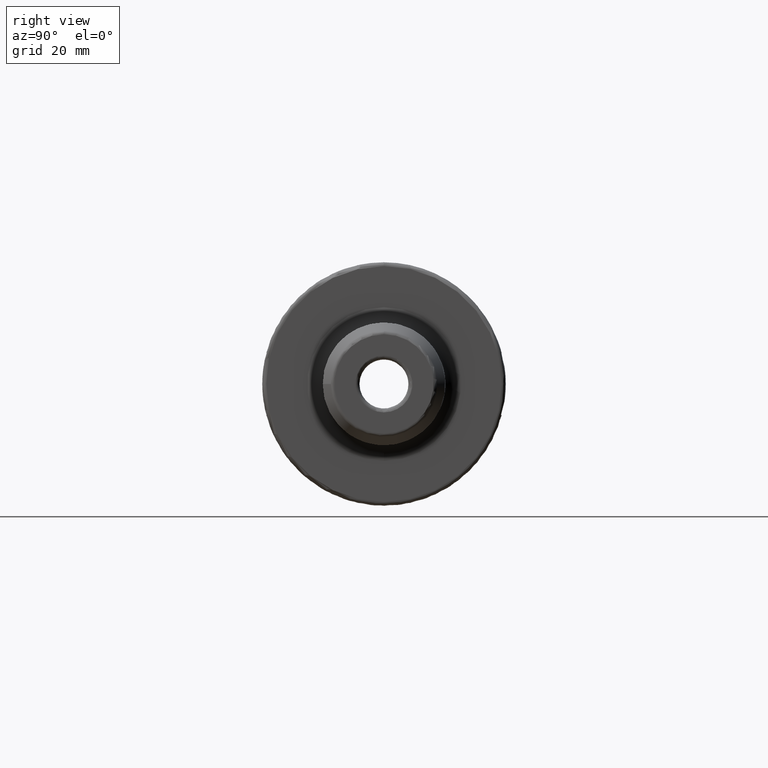
[diagram: clean part render]
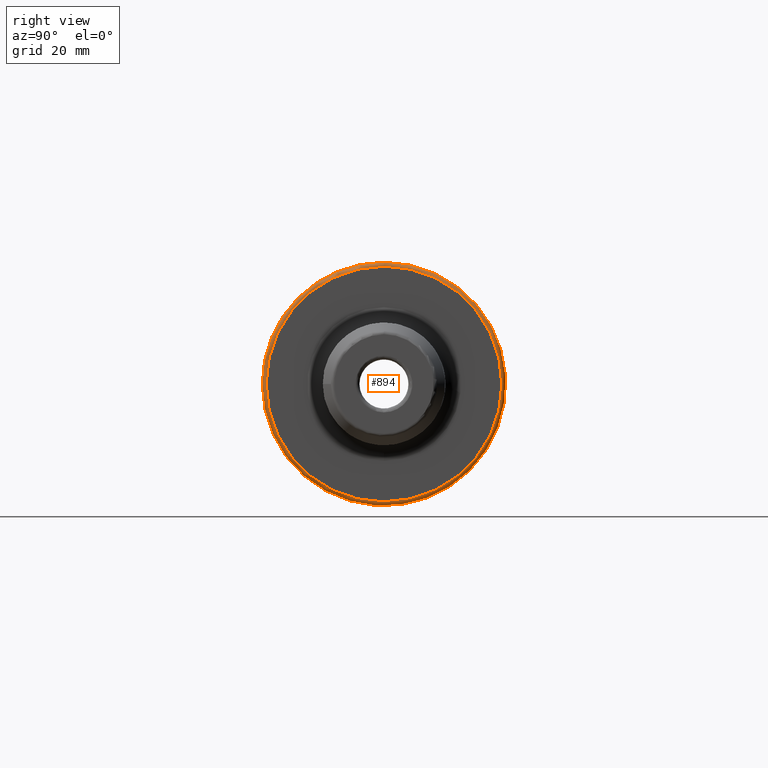
[diagram: same view with one face highlighted and labeled with its STEP entity id]
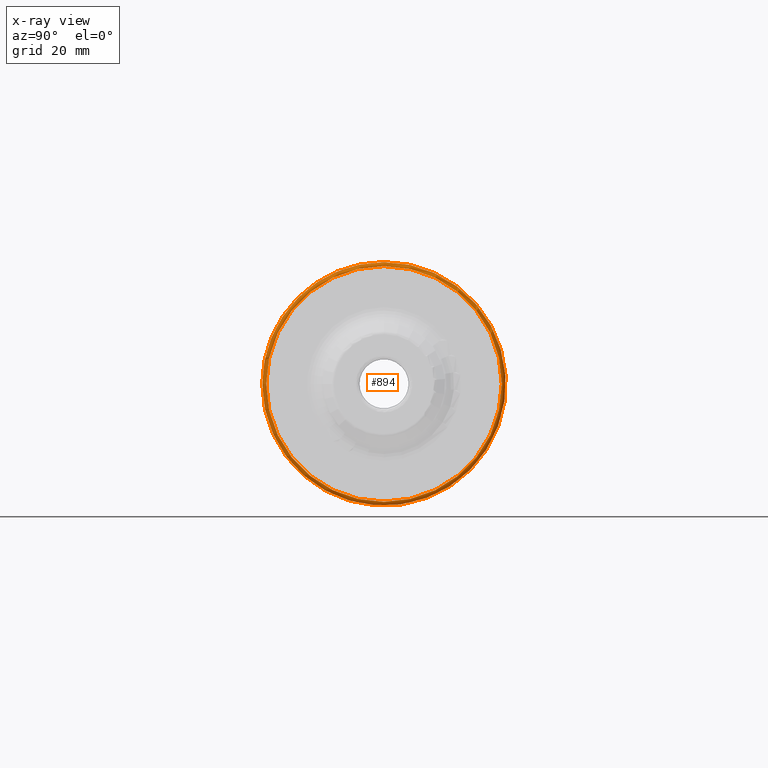
[diagram: x-ray of the same camera — body ghosted, the highlighted face saturated]
A machine part, right view. The second image highlights one B-rep face of the part: STEP entity #894.
The next image is the same camera in x-ray: the body ghosted, the highlighted face saturated — about 0% of this face is hidden behind the body in this view.
In plain terms, the highlighted toroidal blend (fillet) surface has major radius 30.5 mm and minor (blend) radius 1 mm.
Its self-contained STEP definition (entity closure, byte-faithful):
#225=FACE_OUTER_BOUND('',#284,.T.);
#284=EDGE_LOOP('',(#812,#813,#814,#815,#816));
#311=CIRCLE('',#951,30.5);
#319=CIRCLE('',#971,31.5);
#322=CIRCLE('',#974,31.5);
#348=CIRCLE('',#1025,1.00000000000001);
#375=VERTEX_POINT('',#1449);
#405=VERTEX_POINT('',#1581);
#406=VERTEX_POINT('',#1582);
#469=EDGE_CURVE('',#375,#375,#311,.T.);
#507=EDGE_CURVE('',#405,#406,#319,.T.);
#512=EDGE_CURVE('',#406,#405,#322,.T.);
#564=EDGE_CURVE('',#375,#406,#348,.T.);
#812=ORIENTED_EDGE('',*,*,#469,.F.);
#813=ORIENTED_EDGE('',*,*,#564,.T.);
#814=ORIENTED_EDGE('',*,*,#512,.T.);
#815=ORIENTED_EDGE('',*,*,#507,.T.);
#816=ORIENTED_EDGE('',*,*,#564,.F.);
#847=TOROIDAL_SURFACE('',#1024,30.5,1.00000000000001);
#894=ADVANCED_FACE('',(#225),#847,.T.);
#951=AXIS2_PLACEMENT_3D('',#1450,#1098,#1099);
#971=AXIS2_PLACEMENT_3D('',#1583,#1158,#1159);
#974=AXIS2_PLACEMENT_3D('',#1599,#1165,#1166);
#1024=AXIS2_PLACEMENT_3D('',#1745,#1283,#1284);
#1025=AXIS2_PLACEMENT_3D('',#1746,#1285,#1286);
#1098=DIRECTION('center_axis',(1.,0.,0.));
#1099=DIRECTION('ref_axis',(0.,0.,-1.));
#1158=DIRECTION('center_axis',(1.,0.,0.));
#1159=DIRECTION('ref_axis',(0.,0.,-1.));
#1165=DIRECTION('center_axis',(1.,0.,0.));
#1166=DIRECTION('ref_axis',(0.,0.,-1.));
#1283=DIRECTION('center_axis',(1.,0.,0.));
#1284=DIRECTION('ref_axis',(0.,0.,-1.));
#1285=DIRECTION('center_axis',(0.,-1.,-1.22464679914735E-16));
#1286=DIRECTION('ref_axis',(0.,-1.22464679914735E-16,1.));
#1449=CARTESIAN_POINT('',(27.,-3.73517273739943E-15,30.5));
#1450=CARTESIAN_POINT('Origin',(27.,0.,0.));
#1581=CARTESIAN_POINT('',(26.,-31.5,-3.85763741731416E-15));
#1582=CARTESIAN_POINT('',(26.,-3.85763741731416E-15,31.5));
#1583=CARTESIAN_POINT('Origin',(26.,0.,0.));
#1599=CARTESIAN_POINT('Origin',(26.,0.,0.));
#1745=CARTESIAN_POINT('Origin',(26.,0.,0.));
#1746=CARTESIAN_POINT('Origin',(26.,-3.73517273739943E-15,30.5));